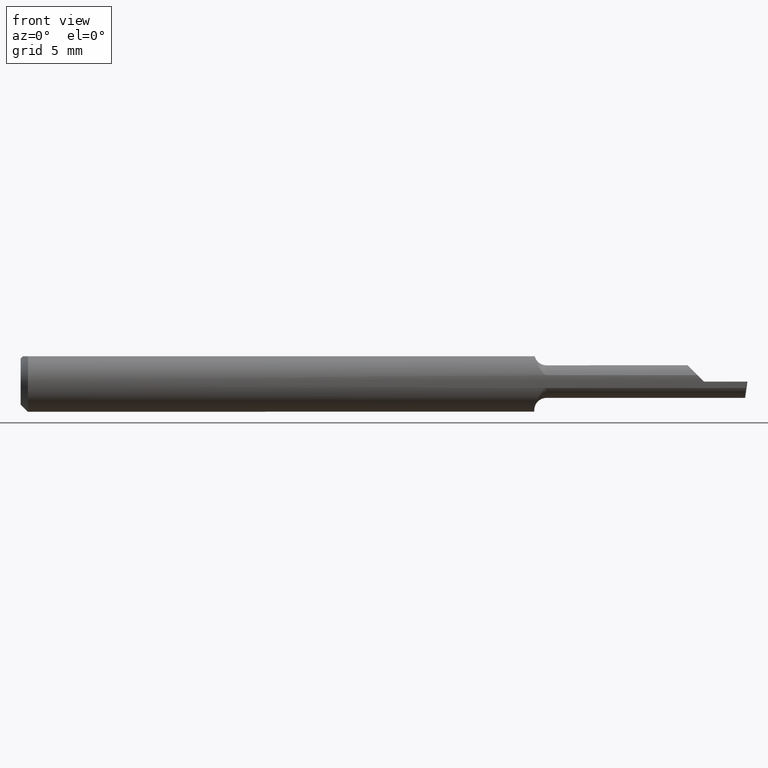
[diagram: clean part render]
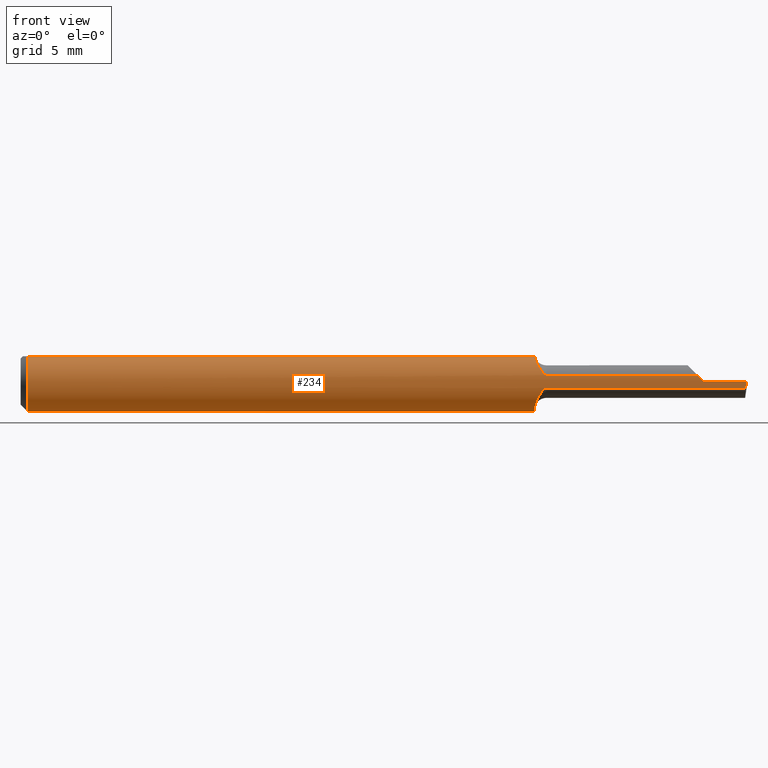
[diagram: same view with one face highlighted and labeled with its STEP entity id]
A machine part, front view. The second image highlights one B-rep face of the part: STEP entity #234.
In plain terms, the highlighted cylindrical surface (edge-blend (fillet) strip) has radius 1.5837 mm, axis along (-1, -0, -0).
Its self-contained STEP definition (entity closure, byte-faithful):
#3 = EDGE_CURVE ( 'NONE', #624, #163, #52, .T. ) ;
#7 = CARTESIAN_POINT ( 'NONE',  ( 1.409999999999999920, -0.06235000000000005121, 1.102182119232617911E-17 ) ) ;
#8 = FACE_OUTER_BOUND ( 'NONE', #314, .T. ) ;
#10 = VERTEX_POINT ( 'NONE', #94 ) ;
#17 = CARTESIAN_POINT ( 'NONE',  ( 1.060459195061412618, -0.03294655339399239075, -0.05323881456264101253 ) ) ;
#21 = CARTESIAN_POINT ( 'NONE',  ( 1.079807319243623942, -0.06032049651225029202, 0.01580211994234496584 ) ) ;
#23 = ORIENTED_EDGE ( 'NONE', *, *, #409, .F. ) ;
#27 = VERTEX_POINT ( 'NONE', #470 ) ;
#30 = LINE ( 'NONE', #416, #212 ) ;
#32 = CARTESIAN_POINT ( 'NONE',  ( 1.060770118751884317, -0.03386738844373782253, 0.05235000000000000070 ) ) ;
#37 = DIRECTION ( 'NONE',  ( -1.000000000000000000, -0.0000000000000000000, -0.0000000000000000000 ) ) ;
#42 = CARTESIAN_POINT ( 'NONE',  ( 1.496364186706980792, -0.06092000000000002968, -0.01327690099383122685 ) ) ;
#43 = DIRECTION ( 'NONE',  ( 0.0000000000000000000, 1.000000000000000000, 0.0000000000000000000 ) ) ;
#44 = ORIENTED_EDGE ( 'NONE', *, *, #438, .F. ) ;
#52 =( BOUNDED_CURVE ( )  B_SPLINE_CURVE ( 3, ( #597, #574, #628, #347 ),
 .UNSPECIFIED., .F., .T. ) 
 B_SPLINE_CURVE_WITH_KNOTS ( ( 4, 4 ),
 ( 1.146162383294269560, 1.360746882514247469 ),
 .UNSPECIFIED. ) 
 CURVE ( )  GEOMETRIC_REPRESENTATION_ITEM ( )  RATIONAL_B_SPLINE_CURVE ( ( 1.000000000000000000, 0.9961664706887894960, 0.9961664706887894960, 1.000000000000000000 ) ) 
 REPRESENTATION_ITEM ( '' )  );
#57 = DIRECTION ( 'NONE',  ( 0.0000000000000000000, 0.0000000000000000000, 1.000000000000000000 ) ) ;
#74 = VECTOR ( 'NONE', #37, 39.37007874015748143 ) ;
#84 = CARTESIAN_POINT ( 'NONE',  ( 1.064663954570610249, -0.04772651244230442791, 0.04037711979630428938 ) ) ;
#87 = CARTESIAN_POINT ( 'NONE',  ( 1.082669914596958050, -0.06082078945086089039, 0.01373977049058535890 ) ) ;
#94 = CARTESIAN_POINT ( 'NONE',  ( 1.396723099006168756, -0.06092000000000002968, 0.01327690099383124073 ) ) ;
#101 = CARTESIAN_POINT ( 'NONE',  ( 1.060000000000000275, 0.0000000000000000000, 0.0000000000000000000 ) ) ;
#106 = CARTESIAN_POINT ( 'NONE',  ( 1.497957498117606479, -0.06235000000000005121, 1.791754701920804801E-19 ) ) ;
#109 = EDGE_CURVE ( 'NONE', #488, #516, #501, .T. ) ;
#111 = CARTESIAN_POINT ( 'NONE',  ( 1.405531640871310994, -0.06235000000000000958, 0.004468359128689231886 ) ) ;
#132 = CARTESIAN_POINT ( 'NONE',  ( 1.079828686665877058, -0.06034170405075480609, -0.01572293840682431956 ) ) ;
#144 = AXIS2_PLACEMENT_3D ( 'NONE', #357, #310, #610 ) ;
#146 = VERTEX_POINT ( 'NONE', #151 ) ;
#148 = ORIENTED_EDGE ( 'NONE', *, *, #258, .T. ) ;
#151 = CARTESIAN_POINT ( 'NONE',  ( 0.01500000000000185213, -0.03386738844380016850, 0.05235000000000000070 ) ) ;
#158 = AXIS2_PLACEMENT_3D ( 'NONE', #642, #588, #57 ) ;
#163 = VERTEX_POINT ( 'NONE', #106 ) ;
#165 = EDGE_CURVE ( 'NONE', #27, #516, #492, .T. ) ;
#167 = ORIENTED_EDGE ( 'NONE', *, *, #3, .T. ) ;
#175 = LINE ( 'NONE', #288, #417 ) ;
#180 = CARTESIAN_POINT ( 'NONE',  ( 1.067651921643428814, -0.05268295501176721574, -0.03378546887498617979 ) ) ;
#181 = CARTESIAN_POINT ( 'NONE',  ( 1.076050480108695639, -0.05911543623058085339, -0.01994584841871081468 ) ) ;
#199 = CARTESIAN_POINT ( 'NONE',  ( 0.0000000000000000000, 0.03386738844375223462, 0.05234999999999997988 ) ) ;
#206 = LINE ( 'NONE', #623, #74 ) ;
#208 = CARTESIAN_POINT ( 'NONE',  ( 1.396723099006168756, -0.06092000000000002968, 0.01327690099383124073 ) ) ;
#212 = VECTOR ( 'NONE', #306, 39.37007874015748143 ) ;
#217 = VERTEX_POINT ( 'NONE', #340 ) ;
#222 = CARTESIAN_POINT ( 'NONE',  ( 1.074448669179930871, -0.05829317251375062264, -0.02226264029831841532 ) ) ;
#226 = CARTESIAN_POINT ( 'NONE',  ( 1.066221614559560882, -0.05050373301684462496, 0.03681593035639608991 ) ) ;
#232 = CARTESIAN_POINT ( 'NONE',  ( 1.060000000000000275, -0.02246166666666676859, -0.05816352835373341662 ) ) ;
#233 = VERTEX_POINT ( 'NONE', #474 ) ;
#234 = ADVANCED_FACE ( 'NONE', ( #8 ), #441, .T. ) ;
#258 = EDGE_CURVE ( 'NONE', #269, #146, #454, .T. ) ;
#262 =( BOUNDED_CURVE ( )  B_SPLINE_CURVE ( 3, ( #383, #111, #533, #208 ),
 .UNSPECIFIED., .F., .T. ) 
 B_SPLINE_CURVE_WITH_KNOTS ( ( 4, 4 ),
 ( 4.712388980384689674, 4.926973479604667361 ),
 .UNSPECIFIED. ) 
 CURVE ( )  GEOMETRIC_REPRESENTATION_ITEM ( )  RATIONAL_B_SPLINE_CURVE ( ( 1.000000000000000000, 0.9961664706887894960, 0.9961664706887894960, 1.000000000000000000 ) ) 
 REPRESENTATION_ITEM ( '' )  );
#264 = VECTOR ( 'NONE', #526, 39.37007874015748143 ) ;
#269 = VERTEX_POINT ( 'NONE', #32 ) ;
#277 = CARTESIAN_POINT ( 'NONE',  ( 1.083800894846882246, -0.06092000000060116688, 0.01327690099107451532 ) ) ;
#278 = CARTESIAN_POINT ( 'NONE',  ( 1.072102256738829862, -0.05694092632992445863, 0.02571027090688613251 ) ) ;
#283 = CARTESIAN_POINT ( 'NONE',  ( 0.0000000000000000000, -0.03386738844375222768, 0.05234999999999997988 ) ) ;
#288 = CARTESIAN_POINT ( 'NONE',  ( 1.255000000000000115, -0.06092000000000002968, 0.01327690099383122685 ) ) ;
#306 = DIRECTION ( 'NONE',  ( -1.000000000000000000, 2.845674993400274571E-18, -0.0000000000000000000 ) ) ;
#310 = DIRECTION ( 'NONE',  ( -1.000000000000000000, -0.0000000000000000000, -0.0000000000000000000 ) ) ;
#314 = EDGE_LOOP ( 'NONE', ( #617, #167, #466, #549, #349, #23, #148, #44, #518, #369, #354, #436 ) ) ;
#315 = CARTESIAN_POINT ( 'NONE',  ( 1.085000000000000187, -0.06092000000000008519, -0.01327690099383104991 ) ) ;
#320 = CARTESIAN_POINT ( 'NONE',  ( 1.077368540304127764, -0.05962881332384153271, 0.01830066387367074859 ) ) ;
#331 = EDGE_CURVE ( 'NONE', #482, #10, #262, .T. ) ;
#335 = DIRECTION ( 'NONE',  ( 0.0000000000000000000, 0.0000000000000000000, 1.000000000000000000 ) ) ;
#340 = CARTESIAN_POINT ( 'NONE',  ( 0.01500000000000000465, 0.0000000000000000000, -0.06235000000000000264 ) ) ;
#347 = CARTESIAN_POINT ( 'NONE',  ( 1.497957498117606479, -0.06235000000000005121, 1.791754701920804801E-19 ) ) ;
#349 = ORIENTED_EDGE ( 'NONE', *, *, #633, .F. ) ;
#353 = CARTESIAN_POINT ( 'NONE',  ( 1.060000000000000275, 0.03386738844375224156, 0.05235000000000000070 ) ) ;
#354 = ORIENTED_EDGE ( 'NONE', *, *, #165, .F. ) ;
#357 = CARTESIAN_POINT ( 'NONE',  ( 0.01500000000000000465, 0.0000000000000000000, 0.0000000000000000000 ) ) ;
#360 = EDGE_CURVE ( 'NONE', #233, #27, #639, .T. ) ;
#367 = CARTESIAN_POINT ( 'NONE',  ( 1.080680476387446909, -0.06051938329563266716, 0.01501179429902400712 ) ) ;
#369 = ORIENTED_EDGE ( 'NONE', *, *, #109, .T. ) ;
#378 = DIRECTION ( 'NONE',  ( 1.000000000000000000, -2.845674993400274571E-18, 0.0000000000000000000 ) ) ;
#383 = CARTESIAN_POINT ( 'NONE',  ( 1.409999999999999920, -0.06235000000000005121, 1.102182119232617911E-17 ) ) ;
#384 = VERTEX_POINT ( 'NONE', #503 ) ;
#394 = VECTOR ( 'NONE', #451, 39.37007874015748143 ) ;
#400 = CARTESIAN_POINT ( 'NONE',  ( 1.062355689262080460, -0.04203237437577737184, -0.04640179157007805200 ) ) ;
#409 = EDGE_CURVE ( 'NONE', #269, #384, #468, .T. ) ;
#416 = CARTESIAN_POINT ( 'NONE',  ( 1.255000000000000115, -0.06092000000000002968, -0.01327690099383122685 ) ) ;
#417 = VECTOR ( 'NONE', #635, 39.37007874015748143 ) ;
#436 = ORIENTED_EDGE ( 'NONE', *, *, #360, .F. ) ;
#438 = EDGE_CURVE ( 'NONE', #217, #146, #494, .T. ) ;
#439 = CARTESIAN_POINT ( 'NONE',  ( 1.063806486637389748, -0.04605636197897010342, -0.04237644601823783996 ) ) ;
#441 = CYLINDRICAL_SURFACE ( 'NONE', #158, 0.06235000000000000264 ) ;
#443 = CARTESIAN_POINT ( 'NONE',  ( 1.078839404641495303, -0.06006884725234332839, -0.01674793665629174116 ) ) ;
#451 = DIRECTION ( 'NONE',  ( -1.000000000000000000, -0.0000000000000000000, -0.0000000000000000000 ) ) ;
#454 = LINE ( 'NONE', #283, #394 ) ;
#466 = ORIENTED_EDGE ( 'NONE', *, *, #586, .T. ) ;
#468 = B_SPLINE_CURVE_WITH_KNOTS ( 'NONE', 3,
 ( #559, #556, #614, #84, #226, #562, #278, #619, #320, #21, #367, #87, #277, #476 ),
 .UNSPECIFIED., .F., .F.,
 ( 4, 2, 2, 2, 2, 2, 4 ),
 ( 3.657393739027581265E-07, 0.0003570510026825781660, 0.0007137362659912535167, 0.001070421529299928976, 0.001248764160954266922, 0.001337935476781435679, 0.001427106792608604435 ),
 .UNSPECIFIED. ) ;
#470 = CARTESIAN_POINT ( 'NONE',  ( 1.060000000000000275, -0.02246166666666676859, -0.05816352835373341662 ) ) ;
#474 = CARTESIAN_POINT ( 'NONE',  ( 1.085000000000000187, -0.06092000000000008519, -0.01327690099383104991 ) ) ;
#476 = CARTESIAN_POINT ( 'NONE',  ( 1.085000000000000187, -0.06092000000000011989, 0.01327690099383098572 ) ) ;
#482 = VERTEX_POINT ( 'NONE', #7 ) ;
#484 = CARTESIAN_POINT ( 'NONE',  ( 0.01500000000000000465, 0.03386738844375223462, 0.05234999999999997988 ) ) ;
#488 = VERTEX_POINT ( 'NONE', #484 ) ;
#492 = CIRCLE ( 'NONE', #550, 0.06235000000000000264 ) ;
#494 = CIRCLE ( 'NONE', #144, 0.06235000000000000264 ) ;
#496 = CARTESIAN_POINT ( 'NONE',  ( 1.070064578917327980, -0.05535262368619134343, -0.02912723828542086030 ) ) ;
#498 = CARTESIAN_POINT ( 'NONE',  ( 1.082160137918816600, -0.06077026469959422028, -0.01397522694752832348 ) ) ;
#499 = EDGE_CURVE ( 'NONE', #624, #233, #30, .T. ) ;
#500 = CARTESIAN_POINT ( 'NONE',  ( 1.059999999999999831, -0.02789725500421540855, -0.05606440581369923071 ) ) ;
#501 = LINE ( 'NONE', #199, #264 ) ;
#503 = CARTESIAN_POINT ( 'NONE',  ( 1.085000000000000187, -0.06092000000000011989, 0.01327690099383098572 ) ) ;
#516 = VERTEX_POINT ( 'NONE', #353 ) ;
#518 = ORIENTED_EDGE ( 'NONE', *, *, #608, .F. ) ;
#526 = DIRECTION ( 'NONE',  ( 1.000000000000000000, 0.0000000000000000000, 0.0000000000000000000 ) ) ;
#529 = CARTESIAN_POINT ( 'NONE',  ( 0.01500000000000000465, 0.0000000000000000000, 0.0000000000000000000 ) ) ;
#533 = CARTESIAN_POINT ( 'NONE',  ( 1.401088976121160901, -0.06187149898566946665, 0.008911023878839208559 ) ) ;
#549 = ORIENTED_EDGE ( 'NONE', *, *, #331, .T. ) ;
#550 = AXIS2_PLACEMENT_3D ( 'NONE', #101, #378, #43 ) ;
#556 = CARTESIAN_POINT ( 'NONE',  ( 1.061344833552323452, -0.03782458604559962856, 0.04978992457821582868 ) ) ;
#559 = CARTESIAN_POINT ( 'NONE',  ( 1.060770118751884317, -0.03386738844373782253, 0.05235000000000000070 ) ) ;
#562 = CARTESIAN_POINT ( 'NONE',  ( 1.069932821425532365, -0.05508260153816094823, 0.02952874505345454842 ) ) ;
#571 = CIRCLE ( 'NONE', #602, 0.06235000000000000264 ) ;
#574 = CARTESIAN_POINT ( 'NONE',  ( 1.496875516891821967, -0.06187149898566946665, -0.008911023878839243254 ) ) ;
#586 = EDGE_CURVE ( 'NONE', #163, #482, #206, .T. ) ;
#588 = DIRECTION ( 'NONE',  ( -1.000000000000000000, -0.0000000000000000000, -0.0000000000000000000 ) ) ;
#597 = CARTESIAN_POINT ( 'NONE',  ( 1.496364186706980792, -0.06092000000000002968, -0.01327690099383122685 ) ) ;
#602 = AXIS2_PLACEMENT_3D ( 'NONE', #529, #632, #335 ) ;
#608 = EDGE_CURVE ( 'NONE', #488, #217, #571, .T. ) ;
#610 = DIRECTION ( 'NONE',  ( 0.0000000000000000000, 0.0000000000000000000, 1.000000000000000000 ) ) ;
#614 = CARTESIAN_POINT ( 'NONE',  ( 1.062228576699353555, -0.04137438227418509945, 0.04686461655001718934 ) ) ;
#617 = ORIENTED_EDGE ( 'NONE', *, *, #499, .F. ) ;
#619 = CARTESIAN_POINT ( 'NONE',  ( 1.075983073081282049, -0.05904190537839694441, 0.02013745427411970865 ) ) ;
#623 = CARTESIAN_POINT ( 'NONE',  ( 2.249639673992780117E-32, -0.06234999999999999570, 1.836970198721026976E-16 ) ) ;
#624 = VERTEX_POINT ( 'NONE', #42 ) ;
#628 = CARTESIAN_POINT ( 'NONE',  ( 1.497408664532471567, -0.06235000000000000958, -0.004468359128689266581 ) ) ;
#632 = DIRECTION ( 'NONE',  ( -1.000000000000000000, -0.0000000000000000000, -0.0000000000000000000 ) ) ;
#633 = EDGE_CURVE ( 'NONE', #384, #10, #175, .T. ) ;
#635 = DIRECTION ( 'NONE',  ( 1.000000000000000000, -2.845674993400274571E-18, 0.0000000000000000000 ) ) ;
#639 = B_SPLINE_CURVE_WITH_KNOTS ( 'NONE', 3,
 ( #315, #649, #498, #132, #443, #181, #222, #496, #180, #439, #400, #17, #500, #232 ),
 .UNSPECIFIED., .F., .F.,
 ( 4, 2, 2, 2, 2, 2, 4 ),
 ( 1.965909345844155589E-07, 0.0001114396223726250092, 0.0002226826538106656077, 0.0004451687166867400827, 0.0008901408424388890326, 0.001335112968191038470, 0.001780085093943187908 ),
 .UNSPECIFIED. ) ;
#642 = CARTESIAN_POINT ( 'NONE',  ( 0.0000000000000000000, 0.0000000000000000000, 0.0000000000000000000 ) ) ;
#649 = CARTESIAN_POINT ( 'NONE',  ( 1.083515031386486527, -0.06092000000000005050, -0.01327690099383105685 ) ) ;